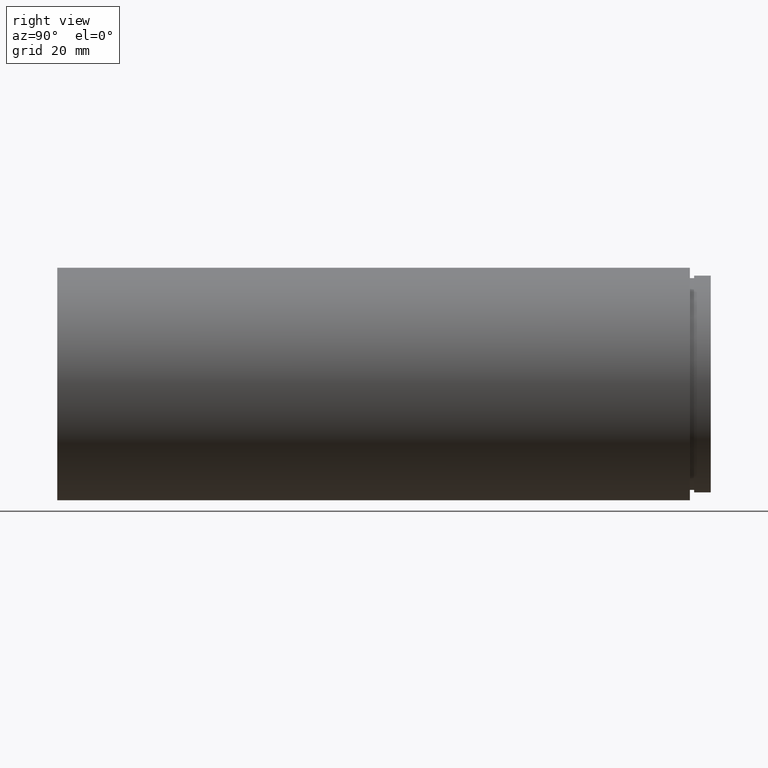
[diagram: clean part render]
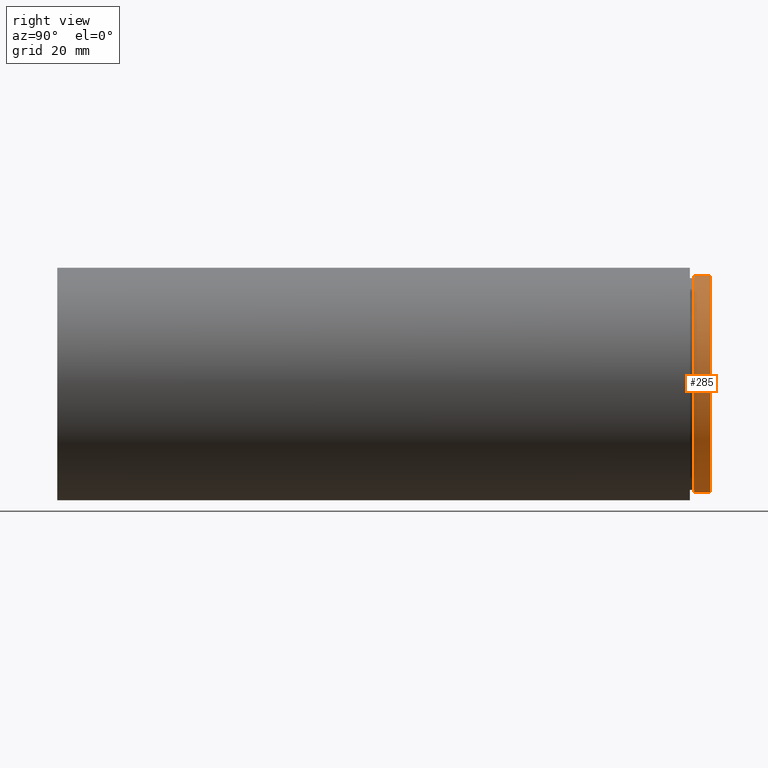
[diagram: same view with one face highlighted and labeled with its STEP entity id]
A machine part, right view. The second image highlights one B-rep face of the part: STEP entity #285.
In plain terms, the highlighted cylindrical surface (partial cylindrical patch) has radius 26.1 mm, axis along (-0, 1, -0).
Its self-contained STEP definition (entity closure, byte-faithful):
#47 = DIRECTION ( 'NONE',  ( 0.0000000000000000000, 0.0000000000000000000, 1.000000000000000000 ) ) ;
#68 = VECTOR ( 'NONE', #412, 1000.000000000000000 ) ;
#78 = ORIENTED_EDGE ( 'NONE', *, *, #590, .F. ) ;
#81 = VERTEX_POINT ( 'NONE', #274 ) ;
#88 = EDGE_CURVE ( 'NONE', #265, #81, #604, .T. ) ;
#95 = ORIENTED_EDGE ( 'NONE', *, *, #165, .T. ) ;
#103 = FACE_OUTER_BOUND ( 'NONE', #246, .T. ) ;
#112 = VECTOR ( 'NONE', #399, 1000.000000000000000 ) ;
#115 = CARTESIAN_POINT ( 'NONE',  ( 0.0000000000000000000, 161.3761669434274500, 26.10000000000000100 ) ) ;
#149 = AXIS2_PLACEMENT_3D ( 'NONE', #518, #379, #462 ) ;
#150 = CIRCLE ( 'NONE', #149, 26.10000000000000100 ) ;
#165 = EDGE_CURVE ( 'NONE', #265, #206, #593, .T. ) ;
#198 = AXIS2_PLACEMENT_3D ( 'NONE', #283, #277, #369 ) ;
#206 = VERTEX_POINT ( 'NONE', #281 ) ;
#212 = CARTESIAN_POINT ( 'NONE',  ( 3.196328145774592300E-015, 161.3761669434274500, -26.10000000000000100 ) ) ;
#246 = EDGE_LOOP ( 'NONE', ( #95, #260, #78, #348 ) ) ;
#253 = CYLINDRICAL_SURFACE ( 'NONE', #315, 26.10000000000000100 ) ;
#260 = ORIENTED_EDGE ( 'NONE', *, *, #311, .T. ) ;
#265 = VERTEX_POINT ( 'NONE', #427 ) ;
#274 = CARTESIAN_POINT ( 'NONE',  ( 0.0000000000000000000, 157.3999999999999800, 26.10000000000000100 ) ) ;
#277 = DIRECTION ( 'NONE',  ( -0.0000000000000000000, 1.000000000000000000, -0.0000000000000000000 ) ) ;
#281 = CARTESIAN_POINT ( 'NONE',  ( 3.196328145774592300E-015, 153.3999999999999800, -26.10000000000000100 ) ) ;
#283 = CARTESIAN_POINT ( 'NONE',  ( 0.0000000000000000000, 153.3999999999999800, 0.0000000000000000000 ) ) ;
#285 = ADVANCED_FACE ( 'NONE', ( #103 ), #253, .T. ) ;
#288 = DIRECTION ( 'NONE',  ( -0.0000000000000000000, 1.000000000000000000, -0.0000000000000000000 ) ) ;
#311 = EDGE_CURVE ( 'NONE', #206, #334, #466, .T. ) ;
#315 = AXIS2_PLACEMENT_3D ( 'NONE', #483, #288, #47 ) ;
#334 = VERTEX_POINT ( 'NONE', #541 ) ;
#348 = ORIENTED_EDGE ( 'NONE', *, *, #88, .F. ) ;
#369 = DIRECTION ( 'NONE',  ( 0.0000000000000000000, 0.0000000000000000000, 1.000000000000000000 ) ) ;
#379 = DIRECTION ( 'NONE',  ( -0.0000000000000000000, 1.000000000000000000, -0.0000000000000000000 ) ) ;
#399 = DIRECTION ( 'NONE',  ( -0.0000000000000000000, 1.000000000000000000, -0.0000000000000000000 ) ) ;
#412 = DIRECTION ( 'NONE',  ( -0.0000000000000000000, 1.000000000000000000, -0.0000000000000000000 ) ) ;
#427 = CARTESIAN_POINT ( 'NONE',  ( 0.0000000000000000000, 153.3999999999999800, 26.10000000000000100 ) ) ;
#462 = DIRECTION ( 'NONE',  ( 0.0000000000000000000, 0.0000000000000000000, 1.000000000000000000 ) ) ;
#466 = LINE ( 'NONE', #212, #112 ) ;
#483 = CARTESIAN_POINT ( 'NONE',  ( 0.0000000000000000000, 161.3761669434274500, 0.0000000000000000000 ) ) ;
#518 = CARTESIAN_POINT ( 'NONE',  ( 0.0000000000000000000, 157.3999999999999800, 0.0000000000000000000 ) ) ;
#541 = CARTESIAN_POINT ( 'NONE',  ( 3.196328145774592300E-015, 157.3999999999999800, -26.10000000000000100 ) ) ;
#590 = EDGE_CURVE ( 'NONE', #81, #334, #150, .T. ) ;
#593 = CIRCLE ( 'NONE', #198, 26.10000000000000100 ) ;
#604 = LINE ( 'NONE', #115, #68 ) ;